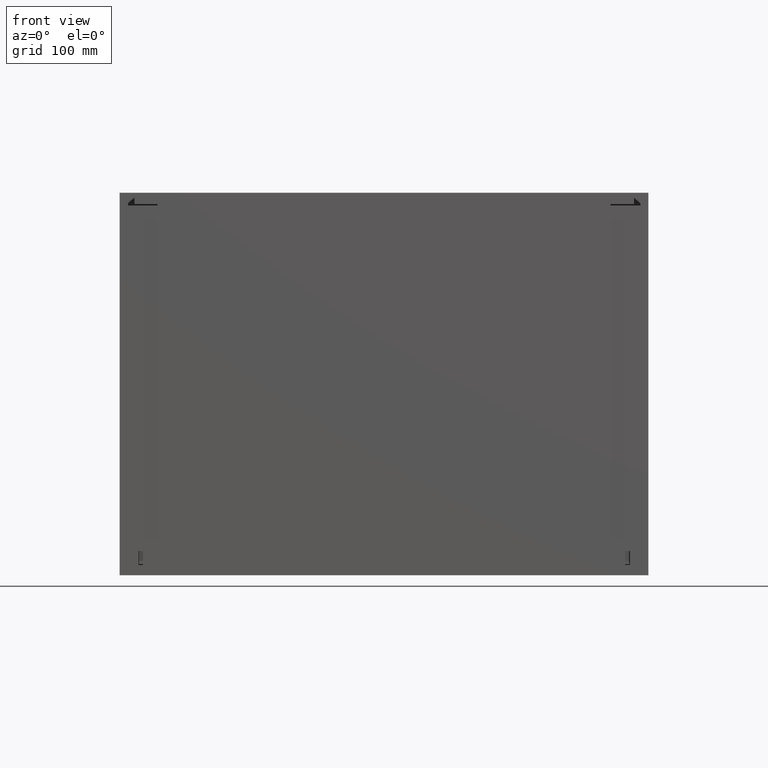
[diagram: clean part render]
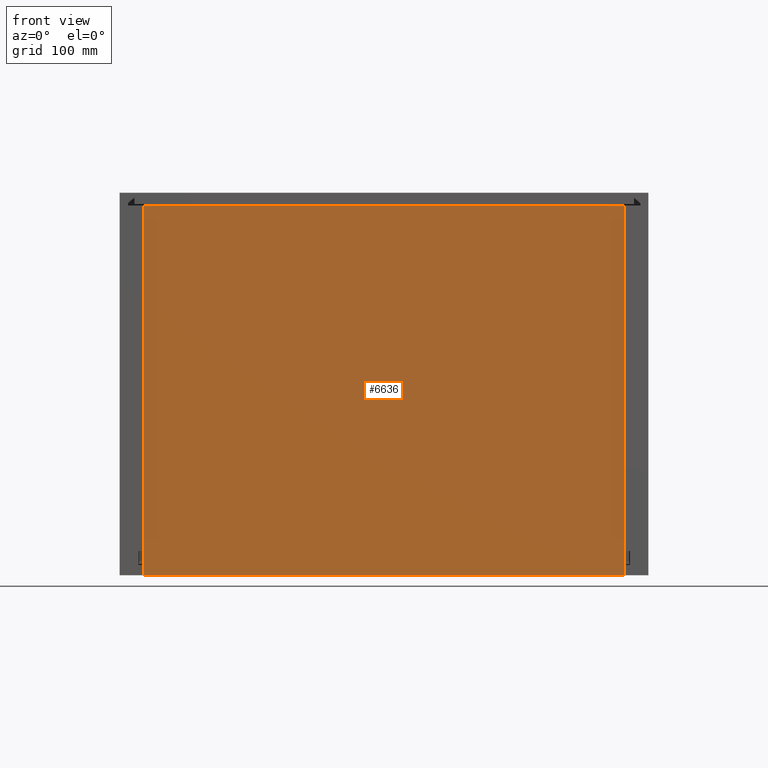
[diagram: same view with one face highlighted and labeled with its STEP entity id]
A machine part, front view. The second image highlights one B-rep face of the part: STEP entity #6636.
In plain terms, the highlighted planar face has unit normal (-0, 1, 0).
Its self-contained STEP definition (entity closure, byte-faithful):
#618 = DIRECTION ( 'NONE',  ( 1.000000000000000000, 0.0000000000000000000, -2.344220913482171841E-17 ) ) ;
#809 = VERTEX_POINT ( 'NONE', #10232 ) ;
#940 = VERTEX_POINT ( 'NONE', #12683 ) ;
#1345 = CARTESIAN_POINT ( 'NONE',  ( 0.0000000000000000000, 0.9999999999999991118, 0.0000000000000000000 ) ) ;
#1665 = AXIS2_PLACEMENT_3D ( 'NONE', #1345, #5786, #10207 ) ;
#2037 = DIRECTION ( 'NONE',  ( -0.0000000000000000000, -0.0000000000000000000, -1.000000000000000000 ) ) ;
#2405 = LINE ( 'NONE', #6834, #8279 ) ;
#2908 = ORIENTED_EDGE ( 'NONE', *, *, #4957, .F. ) ;
#3076 = VECTOR ( 'NONE', #13526, 1000.000000000000000 ) ;
#3077 = EDGE_CURVE ( 'NONE', #940, #11162, #7553, .T. ) ;
#4690 = LINE ( 'NONE', #9117, #3076 ) ;
#4957 = EDGE_CURVE ( 'NONE', #809, #940, #6143, .T. ) ;
#5786 = DIRECTION ( 'NONE',  ( -0.0000000000000000000, 1.000000000000000000, 0.0000000000000000000 ) ) ;
#5851 = EDGE_CURVE ( 'NONE', #7477, #809, #4690, .T. ) ;
#6143 = LINE ( 'NONE', #10571, #14273 ) ;
#6428 = ORIENTED_EDGE ( 'NONE', *, *, #5851, .F. ) ;
#6636 = ADVANCED_FACE ( 'NONE', ( #6867 ), #11285, .F. ) ;
#6809 = VECTOR ( 'NONE', #2037, 1000.000000000000000 ) ;
#6834 = CARTESIAN_POINT ( 'NONE',  ( 29.00000000000002487, 0.9999999999999991118, -470.0000000000000000 ) ) ;
#6867 = FACE_OUTER_BOUND ( 'NONE', #13337, .T. ) ;
#7477 = VERTEX_POINT ( 'NONE', #9727 ) ;
#7553 = LINE ( 'NONE', #11972, #6809 ) ;
#8279 = VECTOR ( 'NONE', #11253, 1000.000000000000000 ) ;
#9117 = CARTESIAN_POINT ( 'NONE',  ( 29.00000000000002487, 0.9999999999999991118, -470.0000000000000000 ) ) ;
#9727 = CARTESIAN_POINT ( 'NONE',  ( 29.00000000000002487, 0.9999999999999991118, -470.0000000000000000 ) ) ;
#10207 = DIRECTION ( 'NONE',  ( 0.0000000000000000000, -0.0000000000000000000, 1.000000000000000000 ) ) ;
#10232 = CARTESIAN_POINT ( 'NONE',  ( 29.00000000000002487, 0.9999999999999991118, -16.00000000000001421 ) ) ;
#10571 = CARTESIAN_POINT ( 'NONE',  ( 29.00000000000002487, 0.9999999999999991118, -16.00000000000001421 ) ) ;
#10617 = ORIENTED_EDGE ( 'NONE', *, *, #12625, .F. ) ;
#10971 = CARTESIAN_POINT ( 'NONE',  ( 621.0000000000000000, 0.9999999999999991118, -470.0000000000000000 ) ) ;
#11162 = VERTEX_POINT ( 'NONE', #10971 ) ;
#11253 = DIRECTION ( 'NONE',  ( -1.000000000000000000, -0.0000000000000000000, -0.0000000000000000000 ) ) ;
#11285 = PLANE ( 'NONE',  #1665 ) ;
#11972 = CARTESIAN_POINT ( 'NONE',  ( 621.0000000000000000, 0.9999999999999991118, -470.0000000000000000 ) ) ;
#12625 = EDGE_CURVE ( 'NONE', #11162, #7477, #2405, .T. ) ;
#12683 = CARTESIAN_POINT ( 'NONE',  ( 621.0000000000000000, 0.9999999999999991118, -16.00000000000001421 ) ) ;
#13337 = EDGE_LOOP ( 'NONE', ( #6428, #10617, #13586, #2908 ) ) ;
#13526 = DIRECTION ( 'NONE',  ( 0.0000000000000000000, 0.0000000000000000000, 1.000000000000000000 ) ) ;
#13586 = ORIENTED_EDGE ( 'NONE', *, *, #3077, .F. ) ;
#14273 = VECTOR ( 'NONE', #618, 1000.000000000000000 ) ;